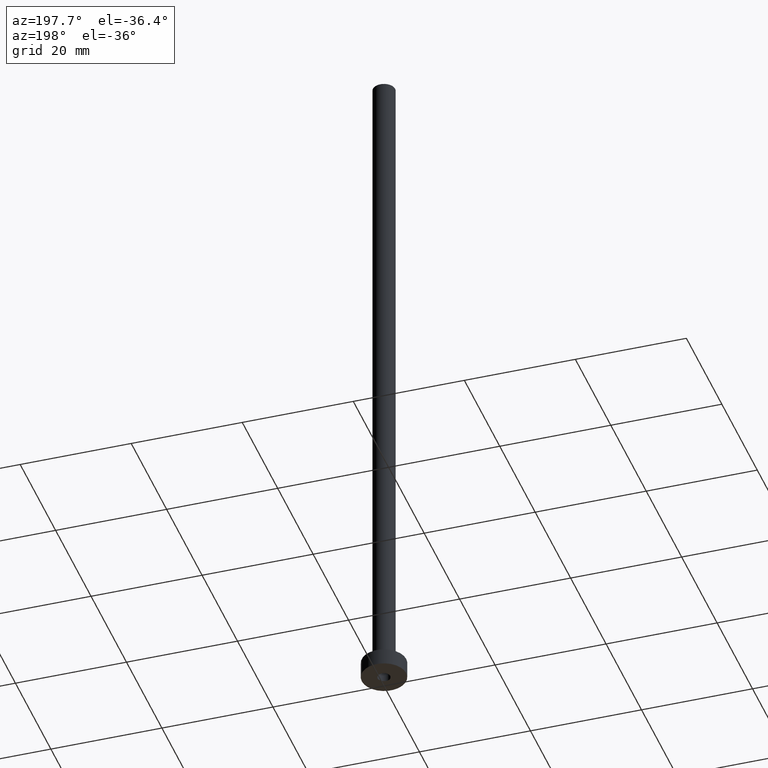
[diagram: clean part render]
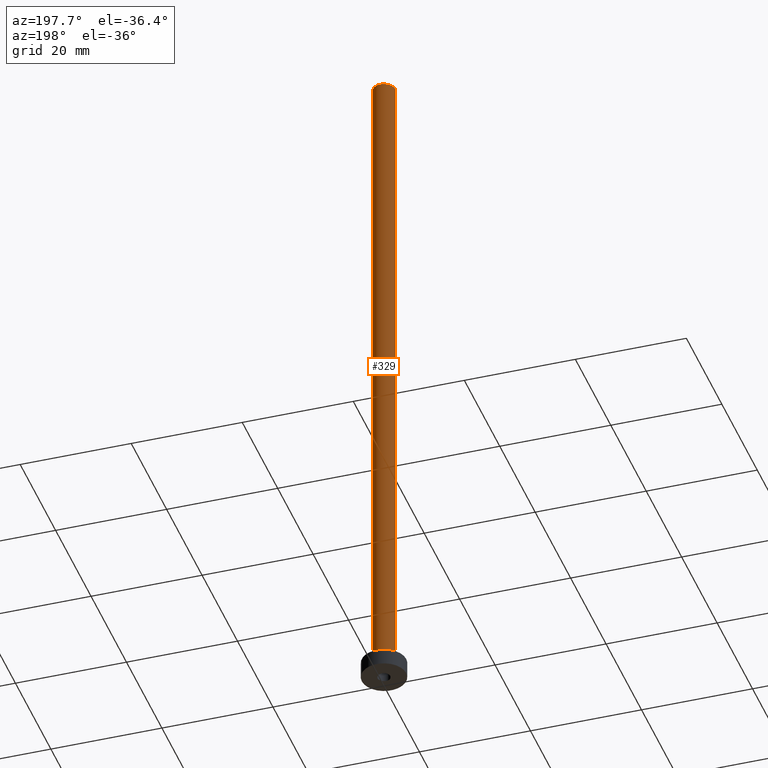
[diagram: same view with one face highlighted and labeled with its STEP entity id]
A machine part, auxiliary view. The second image highlights one B-rep face of the part: STEP entity #329.
In plain terms, the highlighted cylindrical surface (edge-blend (fillet) strip) has radius 2 mm, axis along (-0, -0, -1).
Its self-contained STEP definition (entity closure, byte-faithful):
#35 = DIRECTION ( 'NONE',  ( 0.000000000000000000, 0.000000000000000000, 1.000000000000000000 ) ) ;
#49 = AXIS2_PLACEMENT_3D ( 'NONE', #249, #110, #331 ) ;
#69 = ORIENTED_EDGE ( 'NONE', *, *, #275, .T. ) ;
#81 = CARTESIAN_POINT ( 'NONE',  ( 2.000000000000000000, 2.449293598294705921E-16, 125.0000000000000000 ) ) ;
#87 = VERTEX_POINT ( 'NONE', #81 ) ;
#92 = ORIENTED_EDGE ( 'NONE', *, *, #188, .F. ) ;
#94 = LINE ( 'NONE', #454, #333 ) ;
#96 = FACE_OUTER_BOUND ( 'NONE', #141, .T. ) ;
#100 = DIRECTION ( 'NONE',  ( 1.000000000000000000, 0.000000000000000000, 0.000000000000000000 ) ) ;
#110 = DIRECTION ( 'NONE',  ( 0.000000000000000000, 0.000000000000000000, 1.000000000000000000 ) ) ;
#117 = CIRCLE ( 'NONE', #49, 2.000000000000000000 ) ;
#120 = AXIS2_PLACEMENT_3D ( 'NONE', #212, #35, #100 ) ;
#121 = CARTESIAN_POINT ( 'NONE',  ( 2.000000000000000000, 2.449293598294705921E-16, 125.0000000000000000 ) ) ;
#122 = ORIENTED_EDGE ( 'NONE', *, *, #197, .F. ) ;
#134 = DIRECTION ( 'NONE',  ( -0.000000000000000000, -0.000000000000000000, -1.000000000000000000 ) ) ;
#141 = EDGE_LOOP ( 'NONE', ( #92, #69, #306, #122 ) ) ;
#175 = VECTOR ( 'NONE', #404, 1000.000000000000000 ) ;
#177 = VERTEX_POINT ( 'NONE', #394 ) ;
#188 = EDGE_CURVE ( 'NONE', #87, #267, #198, .T. ) ;
#197 = EDGE_CURVE ( 'NONE', #267, #177, #94, .T. ) ;
#198 = CIRCLE ( 'NONE', #120, 2.000000000000000000 ) ;
#212 = CARTESIAN_POINT ( 'NONE',  ( 0.000000000000000000, 0.000000000000000000, 125.0000000000000000 ) ) ;
#220 = AXIS2_PLACEMENT_3D ( 'NONE', #307, #353, #239 ) ;
#237 = CYLINDRICAL_SURFACE ( 'NONE', #220, 2.000000000000000000 ) ;
#239 = DIRECTION ( 'NONE',  ( -1.000000000000000000, 0.000000000000000000, 0.000000000000000000 ) ) ;
#243 = LINE ( 'NONE', #121, #175 ) ;
#249 = CARTESIAN_POINT ( 'NONE',  ( 0.000000000000000000, 0.000000000000000000, 3.299999999999997158 ) ) ;
#267 = VERTEX_POINT ( 'NONE', #316 ) ;
#270 = EDGE_CURVE ( 'NONE', #449, #177, #117, .T. ) ;
#275 = EDGE_CURVE ( 'NONE', #87, #449, #243, .T. ) ;
#306 = ORIENTED_EDGE ( 'NONE', *, *, #270, .T. ) ;
#307 = CARTESIAN_POINT ( 'NONE',  ( 0.000000000000000000, 0.000000000000000000, 125.0000000000000000 ) ) ;
#316 = CARTESIAN_POINT ( 'NONE',  ( -2.000000000000000000, 0.000000000000000000, 125.0000000000000000 ) ) ;
#329 = ADVANCED_FACE ( 'NONE', ( #96 ), #237, .T. ) ;
#331 = DIRECTION ( 'NONE',  ( 1.000000000000000000, 0.000000000000000000, 0.000000000000000000 ) ) ;
#333 = VECTOR ( 'NONE', #134, 1000.000000000000000 ) ;
#353 = DIRECTION ( 'NONE',  ( -0.000000000000000000, -0.000000000000000000, -1.000000000000000000 ) ) ;
#394 = CARTESIAN_POINT ( 'NONE',  ( -2.000000000000000000, 0.000000000000000000, 3.299999999999997158 ) ) ;
#404 = DIRECTION ( 'NONE',  ( -0.000000000000000000, -0.000000000000000000, -1.000000000000000000 ) ) ;
#418 = CARTESIAN_POINT ( 'NONE',  ( 2.000000000000000000, 2.449293598294705921E-16, 3.299999999999997158 ) ) ;
#449 = VERTEX_POINT ( 'NONE', #418 ) ;
#454 = CARTESIAN_POINT ( 'NONE',  ( -2.000000000000000000, 0.000000000000000000, 125.0000000000000000 ) ) ;